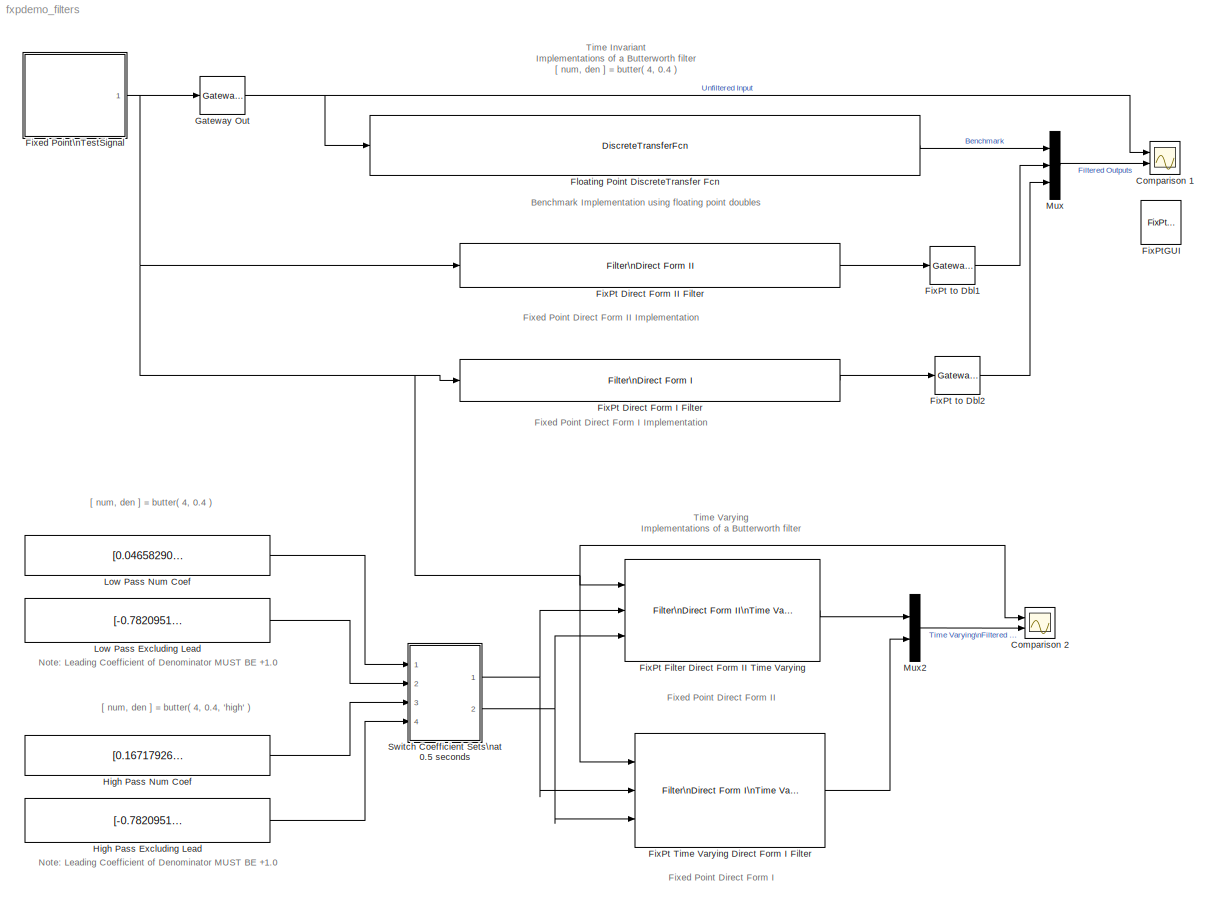
MODEL fxpdemo_filters
KIND model
CONFIG AbsTol = 1e-6
CONFIG FixedStep = 0.005
CONFIG InitFcn = ; 
CONFIG MaxStep = auto
CONFIG MinStep = auto
CONFIG RelTol = 1e-3
CONFIG Solver = FixedStepDiscrete
CONFIG SolverMode = SingleTasking
CONFIG StartFcn = ; 
CONFIG StartTime = 0.0
CONFIG StopFcn = ; 
CONFIG StopTime = 1
BLOCK [Scope] Comparison 1
  DataFormat = StructureWithTime
  NumInputPorts = 2
  Ports = [2]
  TickLabels = on
  TimeRange = 1
  YMax = 1~0.6
  YMin = -1~-0.8
BLOCK [Scope] Comparison 2
  DataFormat = StructureWithTime
  NumInputPorts = 2
  Ports = [2]
  SaveName = ScopeData2
  TickLabels = on
  TimeRange = 1
  YMax = 1~0.6
  YMin = -1~-0.8
BLOCK [Reference] FixPt Direct Form I Filter  REF=fixpt_lib_4/Filters/Filter\nDirect Form I  (lib defined in mdl_ef9dacb0d1df)
  DenCoefVec = [-0.78209519802334 0.67997852691630 -0.18267569775303 0.03011887504317]
  DoSatur = off
  ICPrevInput = 0.0
  ICPrevOutput = 0.0
  NumCoefVec = [0.04658290663644  0.18633162654577 0.27949743981866  0.18633162654577 0.04658290663644]
  Ports = [1, 1]
  RndMeth = Floor
  SourceBlock = fixpt_lib_4/Filters/Filter\nDirect Form I
  SourceType = Fixed-Point Filter Direct Form I
BLOCK [Reference] FixPt Direct Form II Filter  REF=fixpt_lib_4/Filters/Filter\nDirect Form II  (lib defined in mdl_ef9dacb0d1df)
  DenCoefVec = [-0.78209519802334 0.67997852691630 -0.18267569775303 0.03011887504317]
  DoSatur = off
  NumCoefVec = [0.04658290663644  0.18633162654577 0.27949743981866  0.18633162654577 0.04658290663644]
  Ports = [1, 1]
  RndMeth = Floor
  SourceBlock = fixpt_lib_4/Filters/Filter\nDirect Form II
  SourceType = Fixed-Point Filter Direct Form II
  vinit = 0.0
BLOCK [Reference] FixPt Filter Direct Form II Time Varying  REF=fixpt_lib_4/Filters/Filter\nDirect Form II\nTime Varying  (lib defined in mdl_ef9dacb0d1df)
  DoSatur = off
  Ports = [3, 1]
  RndMeth = Floor
  SourceBlock = fixpt_lib_4/Filters/Filter\nDirect Form II\nTime Varying
  SourceType = Fixed-Point Filter Direct Form II Time Varying
  vinit = 0.0
BLOCK [Reference] FixPt Time Varying Direct Form I Filter  REF=fixpt_lib_4/Filters/Filter\nDirect Form I\nTime Varying  (lib defined in mdl_ef9dacb0d1df)
  DoSatur = off
  ICPrevInput = 0.0
  ICPrevOutput = 0.0
  Ports = [3, 1]
  RndMeth = Floor
  SourceBlock = fixpt_lib_4/Filters/Filter\nDirect Form I\nTime Varying
  SourceType = Fixed-Point Filter Direct Form I Time Varying
BLOCK [Reference] FixPt to Dbl1  REF=fixpt_lib_4/Data Type/Gateway Out  (lib defined in mdl_ef9dacb0d1df)
  DoSatur = off
  OutBuiltInType = double
  OutRealWorld = Real World Value
  Ports = [1, 1]
  RndMeth = Floor
  SourceBlock = fixpt_lib_4/Data Type/Gateway Out
  SourceType = Fixed-Point Gateway Out
BLOCK [Reference] FixPt to Dbl2  REF=fixpt_lib_4/Data Type/Gateway Out  (lib defined in mdl_ef9dacb0d1df)
  DoSatur = off
  OutBuiltInType = double
  OutRealWorld = Real World Value
  Ports = [1, 1]
  RndMeth = Floor
  SourceBlock = fixpt_lib_4/Data Type/Gateway Out
  SourceType = Fixed-Point Gateway Out
BLOCK [Reference] FixPtGUI  REF=fixpt_lib_3p1/FixPt\nGUI
  Ports = []
  SourceBlock = fixpt_lib_3p1/FixPt\nGUI
  SourceType = Fixed-Point GUI
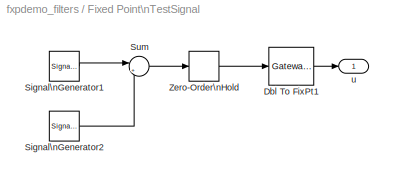
BLOCK [SubSystem] Fixed Point\nTestSignal
  MaskDisplay = fprintf('Sine Waves\\n0.5 @ 2Hz\\nplus\\n0.5 @ 80Hz')
  MaskIconFrame = on
  MaskIconOpaque = on
  MaskIconRotate = none
  MaskIconUnits = autoscale
  Ports = [0, 1]
  TreatAsAtomicUnit = off
BLOCK [Reference] Fixed Point\nTestSignal/Dbl To FixPt1  REF=fixpt_lib_4/Data Type/Gateway In  (lib defined in mdl_ef9dacb0d1df)
  DoSatur = on
  InRealWorld = Real World Value
  LockScale = on
  OutDataType = sfix(16)
  OutScaling = 2^(-15)
  OutputDataTypeScalingMode = Specify via dialog
  Ports = [1, 1]
  RndMeth = Floor
  SourceBlock = fixpt_lib_4/Data Type/Gateway In
  SourceType = Fixed-Point Gateway In
BLOCK [SignalGenerator] Fixed Point\nTestSignal/Signal\nGenerator1
  Amplitude = 0.5
  Frequency = 2
BLOCK [SignalGenerator] Fixed Point\nTestSignal/Signal\nGenerator2
  Amplitude = 0.5
  Frequency = 80
BLOCK [Sum] Fixed Point\nTestSignal/Sum
  IconShape = round
  Inputs = |++
  Ports = [2, 1]
BLOCK [ZeroOrderHold] Fixed Point\nTestSignal/Zero-Order\nHold
  SampleTime = 0.005
BLOCK [Outport] Fixed Point\nTestSignal/u
BLOCK [DiscreteTransferFcn] Floating Point DiscreteTransfer Fcn
  Denominator = [1.00000000000000 -0.78209519802334 0.67997852691630 -0.18267569775303 0.03011887504317]
  Numerator = [0.04658290663644  0.18633162654577 0.27949743981866  0.18633162654577 0.04658290663644]
  SampleTime = -1
BLOCK [Reference] Gateway Out  REF=fixpt_lib_4/Data Type/Gateway Out  (lib defined in mdl_ef9dacb0d1df)
  DoSatur = off
  OutBuiltInType = double
  OutRealWorld = Real World Value
  Ports = [1, 1]
  RndMeth = Floor
  SourceBlock = fixpt_lib_4/Data Type/Gateway Out
  SourceType = Fixed-Point Gateway Out
BLOCK [Constant] High Pass Excluding Lead
  ConRadixGroup = Best Precision: Vector-wise
  OutDataTypeMode = Specify via dialog
  OutScaling = 2^-15
  ShowAdditionalParam = on
  Value = [-0.78209519802334   0.67997852691630  -0.18267569775303 0.03011887504317]
BLOCK [Constant] High Pass Num Coef
  ConRadixGroup = Best Precision: Vector-wise
  OutDataTypeMode = Specify via dialog
  OutScaling = 2^-14
  ShowAdditionalParam = on
  Value = [0.16717926860849  -0.66871707443396   1.00307561165094  -0.66871707443396 0.16717926860849]
BLOCK [Constant] Low Pass Excluding Lead
  ConRadixGroup = Best Precision: Vector-wise
  OutDataTypeMode = Specify via dialog
  OutScaling = 2^-15
  ShowAdditionalParam = on
  Value = [-0.78209519802334 0.67997852691630 -0.18267569775303 0.03011887504317]
BLOCK [Constant] Low Pass Num Coef
  ConRadixGroup = Best Precision: Vector-wise
  OutDataTypeMode = Specify via dialog
  OutScaling = 2^-16
  ShowAdditionalParam = on
  Value = [0.04658290663644 0.18633162654577 0.27949743981866  0.18633162654577 0.04658290663644]
BLOCK [Mux] Mux
  DisplayOption = bar
  Inputs = 3
  Ports = [3, 1]
BLOCK [Mux] Mux2
  DisplayOption = bar
  Inputs = 2
  Ports = [2, 1]
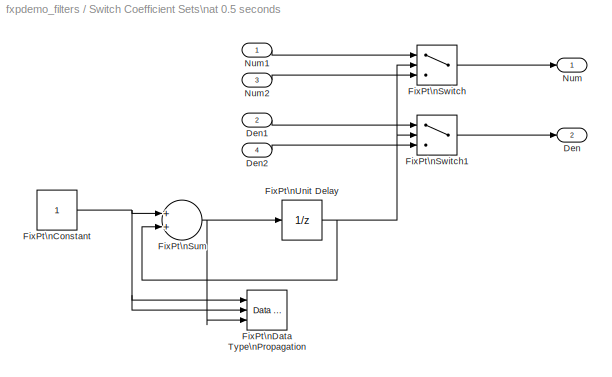
BLOCK [SubSystem] Switch Coefficient Sets\nat 0.5 seconds
  Ports = [4, 2]
  TreatAsAtomicUnit = off
BLOCK [Outport] Switch Coefficient Sets\nat 0.5 seconds/Den
  Port = 2
BLOCK [Inport] Switch Coefficient Sets\nat 0.5 seconds/Den1
  Port = 2
BLOCK [Inport] Switch Coefficient Sets\nat 0.5 seconds/Den2
  Port = 4
BLOCK [Constant] Switch Coefficient Sets\nat 0.5 seconds/FixPt\nConstant
  OutDataType = ufix(16)
  OutDataTypeMode = Specify via dialog
  ShowAdditionalParam = on
BLOCK [Reference] Switch Coefficient Sets\nat 0.5 seconds/FixPt\nData Type\nPropagation  REF=fixpt_lib_4/Data Type/Data Type\nPropagation  (lib defined in mdl_ef9dacb0d1df)
  BiasAdd = 0
  BiasBase = Bias1
  BiasMult = 1
  IfRefDouble = double
  IfRefSingle = single
  IsSigned = IsSigned1 or IsSigned2
  NumBitsAdd = 0
  NumBitsAllowFinal = 1:128
  NumBitsBase = max([NumBits1 NumBits2])
  NumBitsMult = 1
  Ports = [3]
  PropDataType = sfix(16)
  PropDataTypeMode = Inherit via propagation rule
  PropScaling = 2^-10
  PropScalingMode = Inherit via propagation rule
  SlopeAdd = 0
  SlopeBase = min([Slope1 Slope2])
  SlopeMult = 1
  SourceBlock = fixpt_lib_4/Data Type/Data Type\nPropagation
  SourceType = Fixed-Point Data Type Propagation
  ValuesUsedBestPrec = [5 -7]
BLOCK [Sum] Switch Coefficient Sets\nat 0.5 seconds/FixPt\nSum
  InputSameDT = off
  OutDataTypeMode = Inherit via back propagation
  OutScaling = 2^-10
  Ports = [2, 1]
  SaturateOnIntegerOverflow = off
  ShowAdditionalParam = on
BLOCK [Switch] Switch Coefficient Sets\nat 0.5 seconds/FixPt\nSwitch
  InputSameDT = off
  SaturateOnIntegerOverflow = off
  ShowAdditionalParam = on
  Threshold = 100
BLOCK [Switch] Switch Coefficient Sets\nat 0.5 seconds/FixPt\nSwitch1
  InputSameDT = off
  SaturateOnIntegerOverflow = off
  ShowAdditionalParam = on
  Threshold = 100
BLOCK [UnitDelay] Switch Coefficient Sets\nat 0.5 seconds/FixPt\nUnit Delay
  SampleTime = -1
  X0 = 0.0
BLOCK [Outport] Switch Coefficient Sets\nat 0.5 seconds/Num
BLOCK [Inport] Switch Coefficient Sets\nat 0.5 seconds/Num1
BLOCK [Inport] Switch Coefficient Sets\nat 0.5 seconds/Num2
  Port = 3
ANNOTATION (root): Benchmark Implementation using floating point doubles
ANNOTATION (root): Fixed Point Direct Form I
ANNOTATION (root): Fixed Point Direct Form I Implementation
ANNOTATION (root): Fixed Point Direct Form II
ANNOTATION (root): Fixed Point Direct Form II Implementation
ANNOTATION (root): Note: Leading Coefficient of Denominator MUST BE +1.0
ANNOTATION (root): Time Invariant\nImplementations of a Butterworth filter\n[ num, den ] = butter( 4, 0.4 )
ANNOTATION (root): Time Varying\nImplementations of a Butterworth filter
ANNOTATION (root): [ num, den ] = butter( 4, 0.4 )
ANNOTATION (root): [ num, den ] = butter( 4, 0.4, 'high' )
LINE FixPt Direct Form I Filter:1 -> FixPt to Dbl2:1
LINE FixPt Direct Form II Filter:1 -> FixPt to Dbl1:1
LINE FixPt Filter Direct Form II Time Varying:1 -> Mux2:1
LINE FixPt Time Varying Direct Form I Filter:1 -> Mux2:2
LINE FixPt to Dbl1:1 -> Mux:2
LINE FixPt to Dbl2:1 -> Mux:3
LINE Fixed Point\nTestSignal/Dbl To FixPt1:1 -> Fixed Point\nTestSignal/u:1
LINE Fixed Point\nTestSignal/Signal\nGenerator1:1 -> Fixed Point\nTestSignal/Sum:1
LINE Fixed Point\nTestSignal/Signal\nGenerator2:1 -> Fixed Point\nTestSignal/Sum:2
LINE Fixed Point\nTestSignal/Sum:1 -> Fixed Point\nTestSignal/Zero-Order\nHold:1
LINE Fixed Point\nTestSignal/Zero-Order\nHold:1 -> Fixed Point\nTestSignal/Dbl To FixPt1:1
NET Fixed Point\nTestSignal:1 -> Comparison 2:1, FixPt Direct Form I Filter:1, FixPt Direct Form II Filter:1, FixPt Filter Direct Form II Time Varying:1, FixPt Time Varying Direct Form I Filter:1, Gateway Out:1
LINE Floating Point DiscreteTransfer Fcn:1 -> Mux:1
NET Gateway Out:1 -> Comparison 1:1, Floating Point DiscreteTransfer Fcn:1
LINE High Pass Excluding Lead:1 -> Switch Coefficient Sets\nat 0.5 seconds:4
LINE High Pass Num Coef:1 -> Switch Coefficient Sets\nat 0.5 seconds:3
LINE Low Pass Excluding Lead:1 -> Switch Coefficient Sets\nat 0.5 seconds:2
LINE Low Pass Num Coef:1 -> Switch Coefficient Sets\nat 0.5 seconds:1
LINE Mux2:1 -> Comparison 2:2
LINE Mux:1 -> Comparison 1:2
LINE Switch Coefficient Sets\nat 0.5 seconds/Den1:1 -> Switch Coefficient Sets\nat 0.5 seconds/FixPt\nSwitch1:1
LINE Switch Coefficient Sets\nat 0.5 seconds/Den2:1 -> Switch Coefficient Sets\nat 0.5 seconds/FixPt\nSwitch1:3
NET Switch Coefficient Sets\nat 0.5 seconds/FixPt\nConstant:1 -> Switch Coefficient Sets\nat 0.5 seconds/FixPt\nData Type\nPropagation:1, Switch Coefficient Sets\nat 0.5 seconds/FixPt\nData Type\nPropagation:2, Switch Coefficient Sets\nat 0.5 seconds/FixPt\nSum:1
NET Switch Coefficient Sets\nat 0.5 seconds/FixPt\nSum:1 -> Switch Coefficient Sets\nat 0.5 seconds/FixPt\nData Type\nPropagation:3, Switch Coefficient Sets\nat 0.5 seconds/FixPt\nUnit Delay:1
LINE Switch Coefficient Sets\nat 0.5 seconds/FixPt\nSwitch1:1 -> Switch Coefficient Sets\nat 0.5 seconds/Den:1
LINE Switch Coefficient Sets\nat 0.5 seconds/FixPt\nSwitch:1 -> Switch Coefficient Sets\nat 0.5 seconds/Num:1
NET Switch Coefficient Sets\nat 0.5 seconds/FixPt\nUnit Delay:1 -> Switch Coefficient Sets\nat 0.5 seconds/FixPt\nSum:2, Switch Coefficient Sets\nat 0.5 seconds/FixPt\nSwitch1:2, Switch Coefficient Sets\nat 0.5 seconds/FixPt\nSwitch:2
LINE Switch Coefficient Sets\nat 0.5 seconds/Num1:1 -> Switch Coefficient Sets\nat 0.5 seconds/FixPt\nSwitch:1
LINE Switch Coefficient Sets\nat 0.5 seconds/Num2:1 -> Switch Coefficient Sets\nat 0.5 seconds/FixPt\nSwitch:3
NET Switch Coefficient Sets\nat 0.5 seconds:1 -> FixPt Filter Direct Form II Time Varying:2, FixPt Time Varying Direct Form I Filter:2
NET Switch Coefficient Sets\nat 0.5 seconds:2 -> FixPt Filter Direct Form II Time Varying:3, FixPt Time Varying Direct Form I Filter:3
note: NET lines group one-source signal fan-out (src -> all destinations, sorted); 1:1 wires keep LINE
